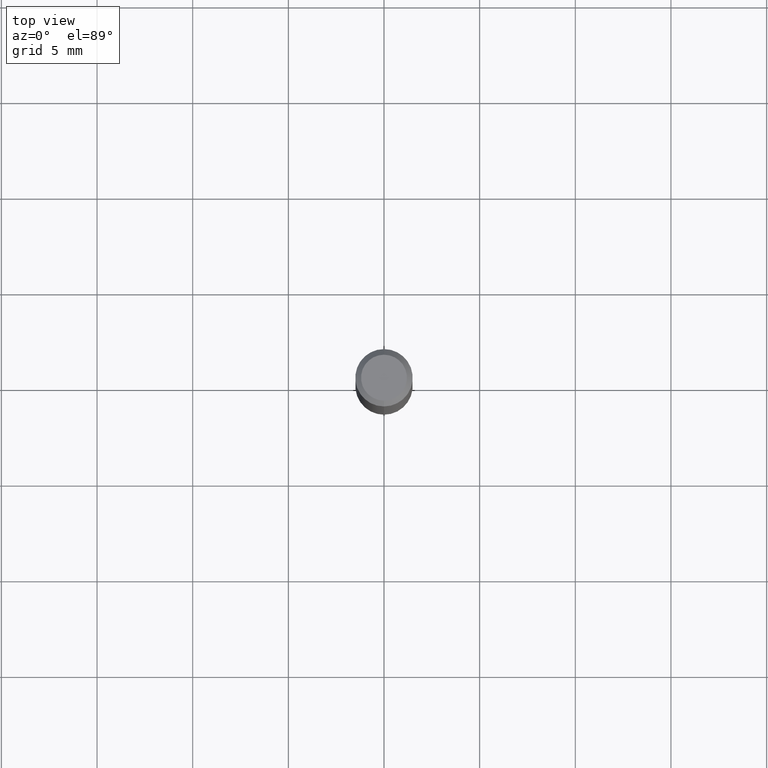
[diagram: clean part render]
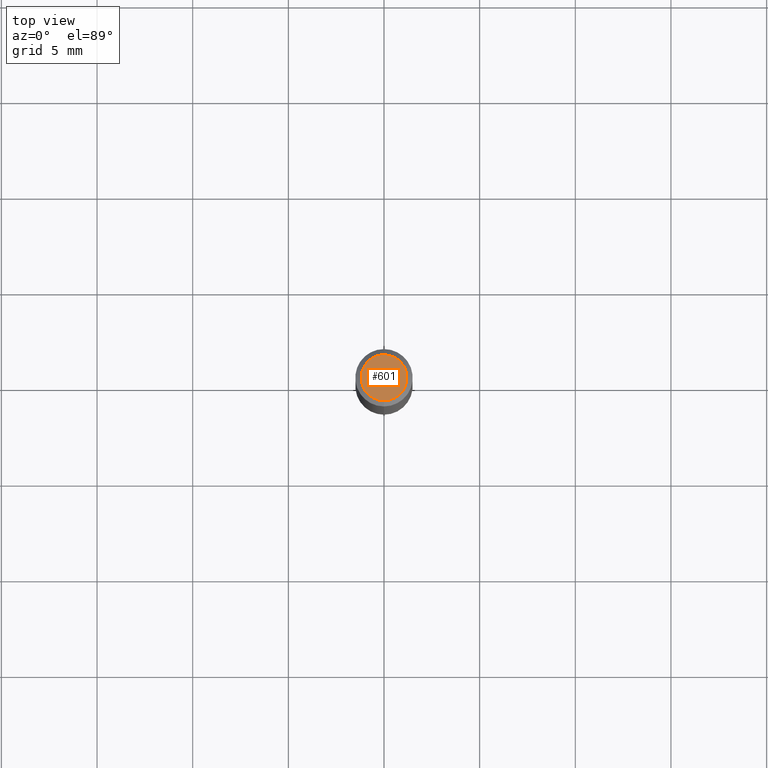
[diagram: same view with one face highlighted and labeled with its STEP entity id]
A machine part, top view. The second image highlights one B-rep face of the part: STEP entity #601.
In plain terms, the highlighted planar face has unit normal (-0, 0, 1).
Its self-contained STEP definition (entity closure, byte-faithful):
#293=EDGE_CURVE('',#473,#301,#824,.T.);
#301=VERTEX_POINT('',#832);
#343=EDGE_CURVE('',#301,#473,#877,.T.);
#473=VERTEX_POINT('',#1021);
#601=ADVANCED_FACE('',(#1166),#1167,.T.);
#824=CIRCLE('',#1397,1.2);
#832=CARTESIAN_POINT('',(1.46952762458685E-016,-1.2,0.0));
#877=CIRCLE('',#1971,1.2);
#1021=CARTESIAN_POINT('',(0.0,1.2,0.0));
#1166=FACE_OUTER_BOUND('',#4030,.T.);
#1167=PLANE('',#4031);
#1397=AXIS2_PLACEMENT_3D('',#5268,#5269,#5270);
#1971=AXIS2_PLACEMENT_3D('',#5312,#5313,#5314);
#4030=EDGE_LOOP('',(#5707,#5708));
#4031=AXIS2_PLACEMENT_3D('',#5709,#5710,#5711);
#5268=CARTESIAN_POINT('',(0.0,0.0,0.0));
#5269=DIRECTION('',(0.0,0.0,-1.0));
#5270=DIRECTION('',(0.0,1.0,0.0));
#5312=CARTESIAN_POINT('',(0.0,0.0,0.0));
#5313=DIRECTION('',(0.0,0.0,-1.0));
#5314=DIRECTION('',(0.0,1.0,0.0));
#5707=ORIENTED_EDGE('',*,*,#293,.F.);
#5708=ORIENTED_EDGE('',*,*,#343,.F.);
#5709=CARTESIAN_POINT('',(0.0,0.6,0.0));
#5710=DIRECTION('',(-0.0,0.0,1.0));
#5711=DIRECTION('',(0.0,-1.0,0.0));